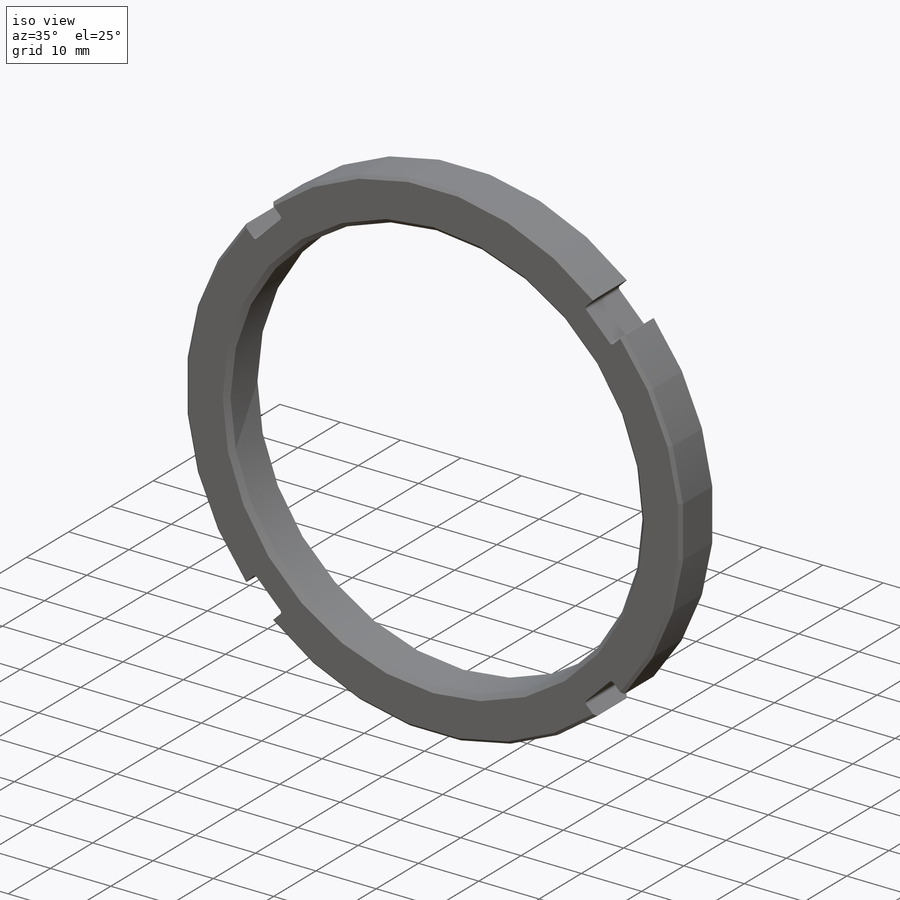
[diagram: iso view]
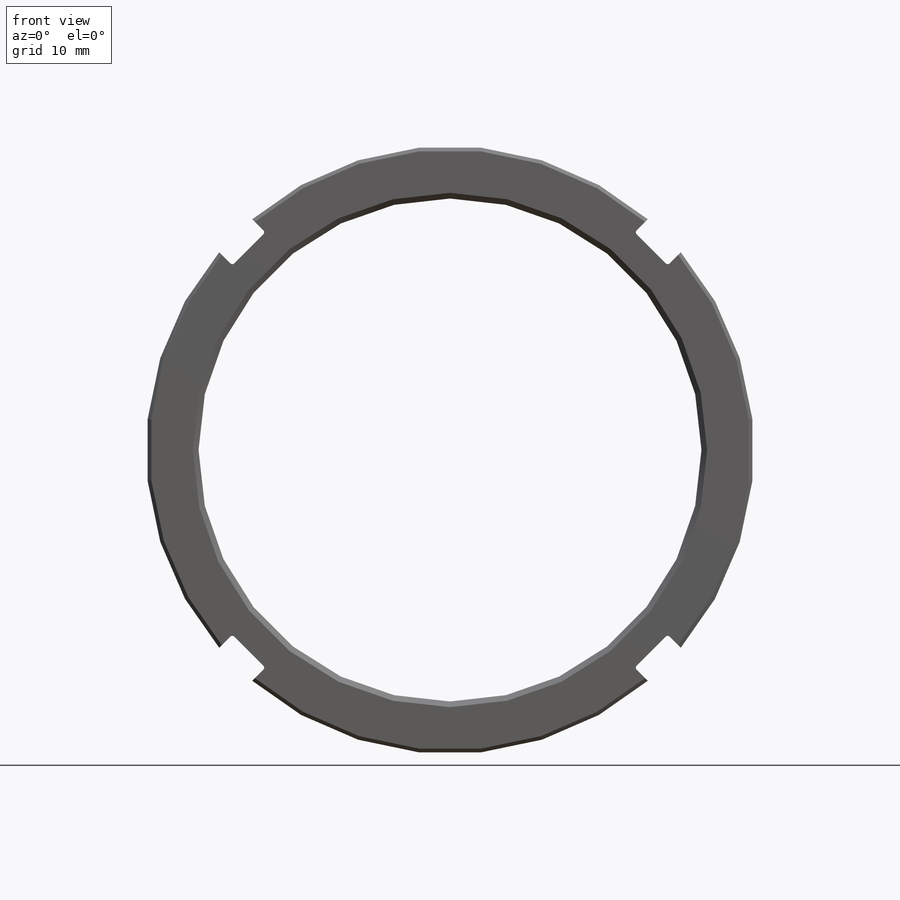
[diagram: front view]
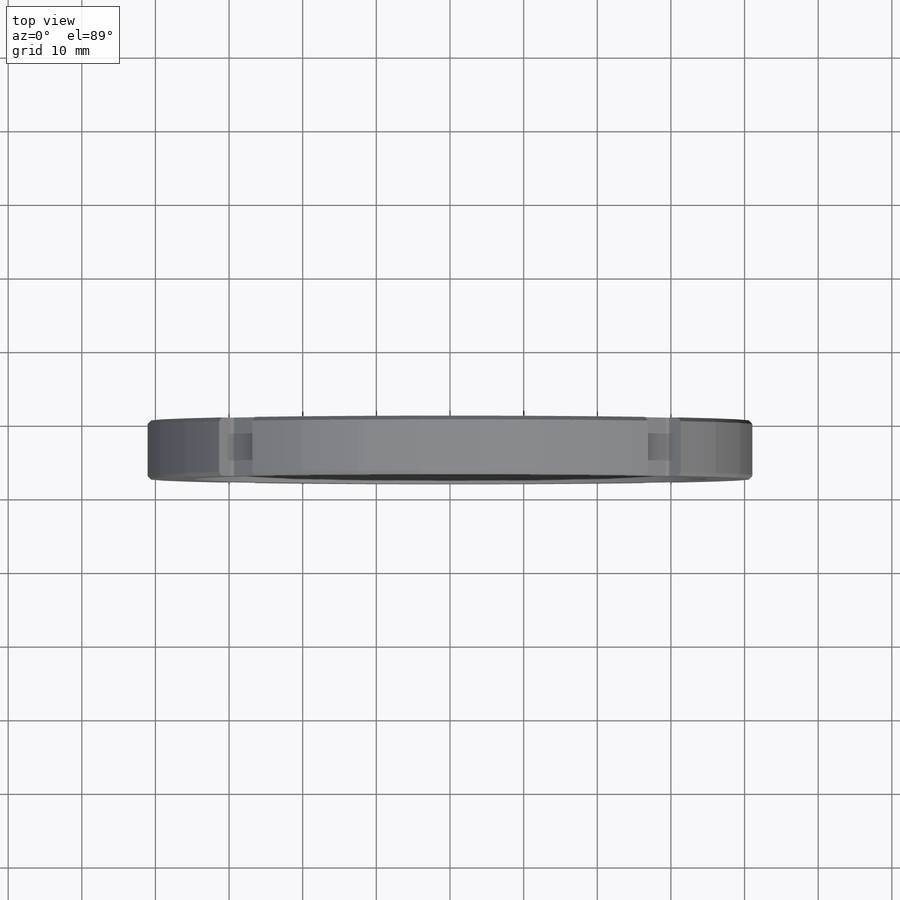
[diagram: top view]
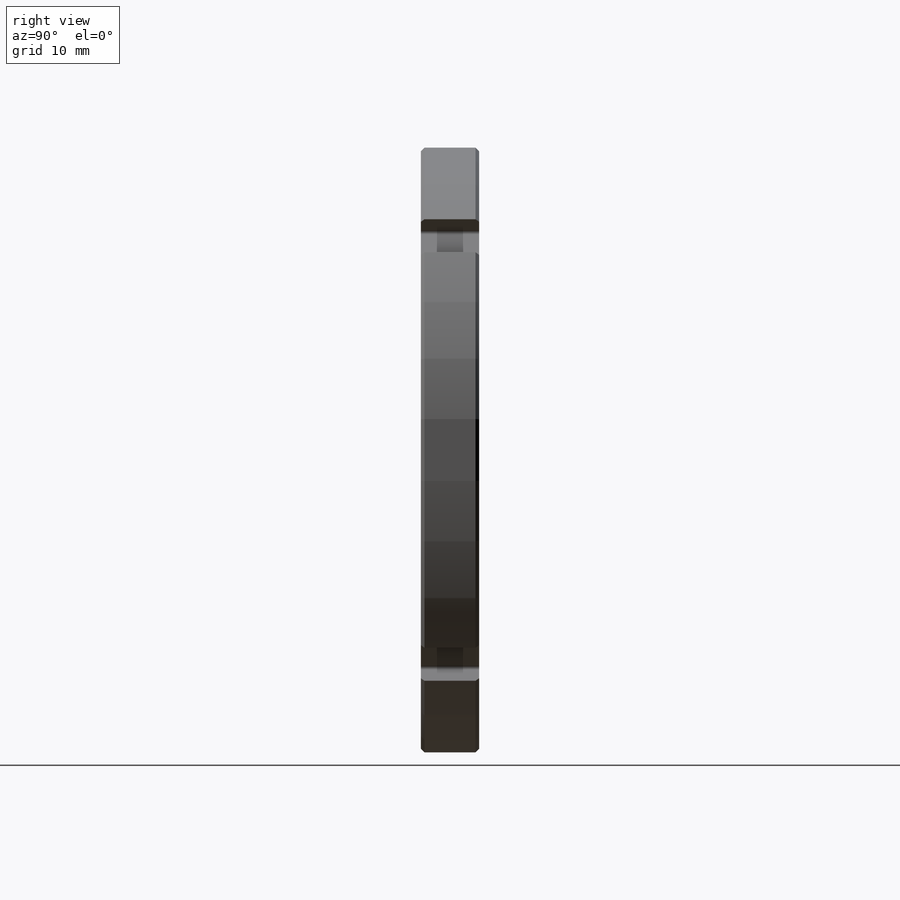
[diagram: right view]
SOLIDWORKS PART (.sldprt)
format: sldprt  version: not decoded by parser v0  size: 202,752 bytes
history: native  units: mm
features: sketch x2, chamfer x2, material x1, extrude x1, cut_extrude x1, fillet x1, pattern_circular x1 (+13 scaffold rows collapsed)
feature tree (22):
  scaffold x13  (default folders/planes/origin — collapsed)
  material  "Alloy Steel"
  sketch  "Sketch1"  dims[D1=82.55mm D2=68.3006mm]
  extrude  "Extrude1"  Depth=7.9248mm
  chamfer  "Chamfer1"  Distance=0.503174mm Angle=45deg
  chamfer  "Chamfer2"  Distance=0.7747mm Angle=45deg
  sketch  "Sketch2"  dims[c1.D3=38.1mm c1.D1=~22.121886mm c2.D1=45.0deg c2.D2=6.35mm c2.D3=2.6416mm]
  cut_extrude  "Cut-Extrude1"  [1 undecoded]
  fillet  "Fillet1"  Radius=0.4064mm
  pattern_circular  "CirPattern1"  Count=4 Angle=360deg
decode coverage: 7 of 8 modeling features carry decoded parameters
note: ~ marks probable driven/reference dimensions
note: 1 parameter value undecoded
note: suppression state not decoded; provenance and decode notes live in map.json
